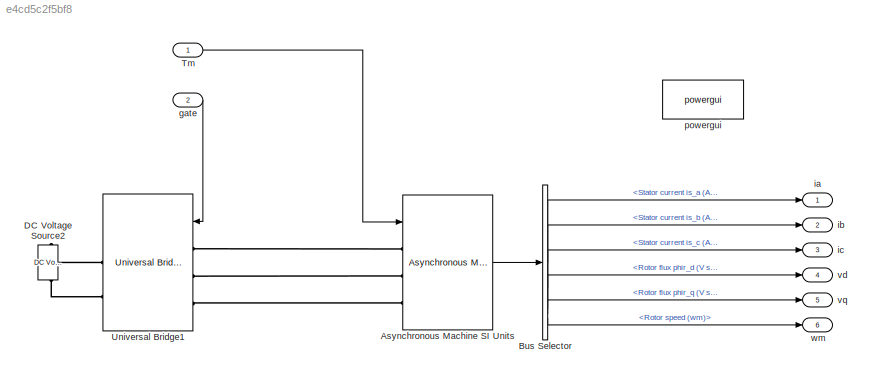
MODEL slx_e4cd5c2f5bf8
KIND model
CONFIG AbsTol = auto
CONFIG EnableMultiTasking = off
CONFIG FixedStep = auto
CONFIG MaxStep = auto
CONFIG MinStep = auto
CONFIG RelTol = 1e-3
CONFIG SampleTimeConstraint = Unconstrained
CONFIG SolverName = FixedStepDiscrete
CONFIG StartTime = 0.0
CONFIG StopTime = 10.0
BLOCK [Reference] Asynchronous Machine SI Units  REF=spsAsynchronousMachineSIUnitsLib/Asynchronous Machine
SI Units
  LibrarySourceBlock = sps_lib/Electrical Machines/Asynchronous Machine\nSI Units
  SourceBlock = spsAsynchronousMachineSIUnitsLib/Asynchronous Machine\nSI Units
  SourceType = Asynchronous Machine
BLOCK [BusSelector] Bus Selector
  OutputSignals = Stator measurements.Stator current is_a (A),Stator measurements.Stator current is_b (A),Stator measurements.Stator current is_c (A),Rotor measurements.Rotor flux phir_d (V s),Rotor measurements.Rotor flux phir_q (V s),Mechanical.Rotor speed (wm)
BLOCK [Reference] DC Voltage Source2  REF=spsDCVoltageSourceLib/DC Voltage Source
  LibrarySourceBlock = sps_lib/Sources/DC Voltage Source
  NameLocation = right
  SourceBlock = spsDCVoltageSourceLib/DC Voltage Source
  SourceType = DC Voltage Source
BLOCK [Inport] Tm
BLOCK [Reference] Universal Bridge1  REF=spsUniversalBridgeLib/Universal Bridge
  LibrarySourceBlock = sps_lib/Power Electronics/Universal Bridge
  SourceBlock = spsUniversalBridgeLib/Universal Bridge
  SourceType = Universal Bridge
BLOCK [Inport] gate
  Port = 2
BLOCK [Outport] ia
  NameLocation = right
BLOCK [Outport] ib
  NameLocation = right
  Port = 2
BLOCK [Outport] ic
  NameLocation = right
  Port = 3
BLOCK [Reference] powergui  REF=spspowerguiLib/powergui
  LibrarySourceBlock = sps_lib/powergui
  Priority = 1
  SourceBlock = spspowerguiLib/powergui
  SourceType = PSB option menu block
BLOCK [Outport] vd
  NameLocation = right
  Port = 4
BLOCK [Outport] vq
  NameLocation = right
  Port = 5
BLOCK [Outport] wm
  NameLocation = right
  Port = 6
LINE Asynchronous Machine SI Units:1 -> Bus Selector:1
LINE Bus Selector:1 -> ia:1
LINE Bus Selector:2 -> ib:1
LINE Bus Selector:3 -> ic:1
LINE Bus Selector:4 -> vd:1
LINE Bus Selector:5 -> vq:1
LINE Bus Selector:6 -> wm:1
LINE Tm:1 -> Asynchronous Machine SI Units:1
LINE gate:1 -> Universal Bridge1:1
PLINE Asynchronous Machine SI Units:LConn1 -- Universal Bridge1:LConn1
PLINE Asynchronous Machine SI Units:LConn2 -- Universal Bridge1:LConn2
PLINE Asynchronous Machine SI Units:LConn3 -- Universal Bridge1:LConn3
PLINE DC Voltage Source2:LConn1 -- Universal Bridge1:RConn2
PLINE DC Voltage Source2:RConn1 -- Universal Bridge1:RConn1
